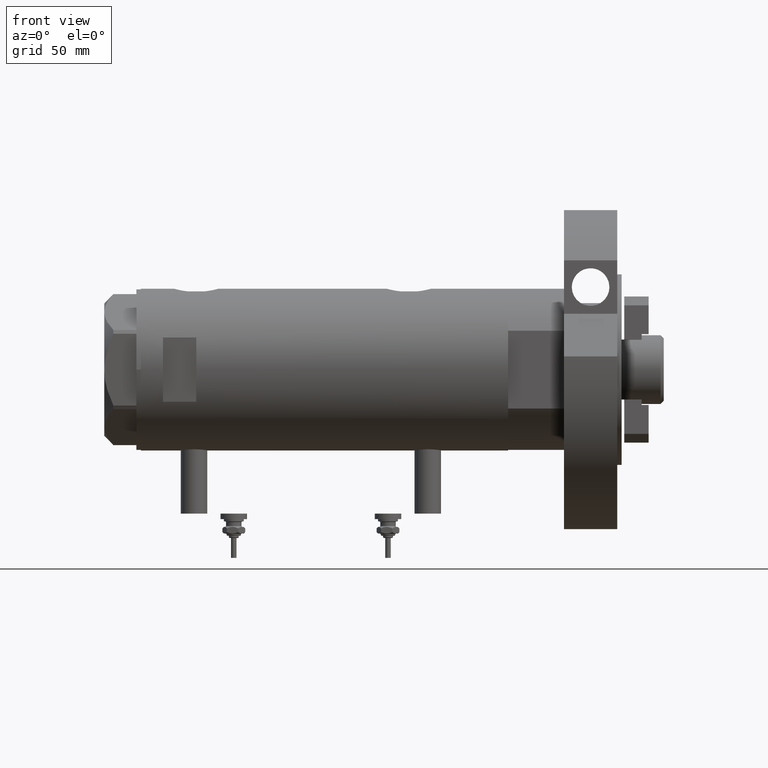
[diagram: clean part render]
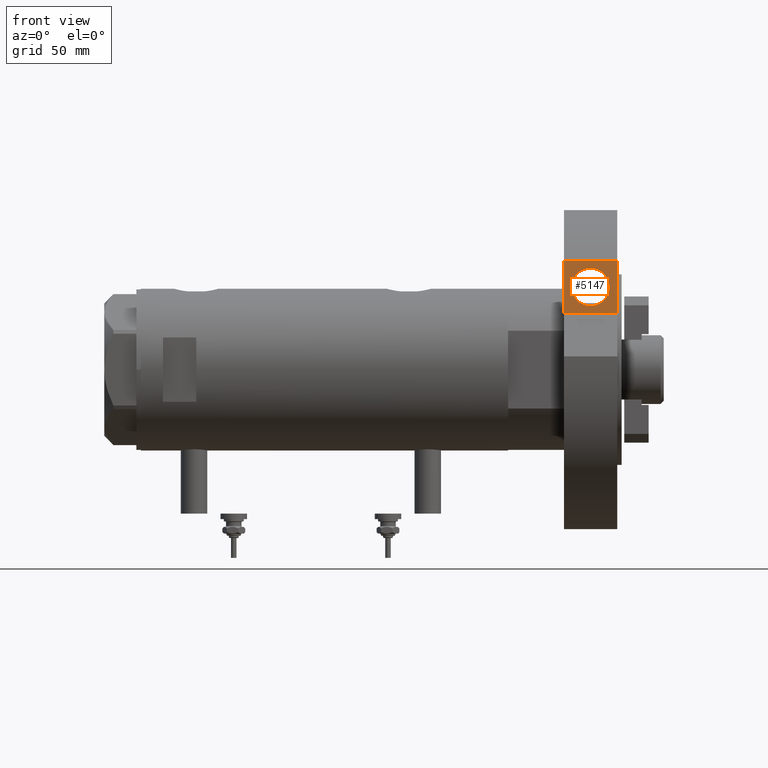
[diagram: same view with one face highlighted and labeled with its STEP entity id]
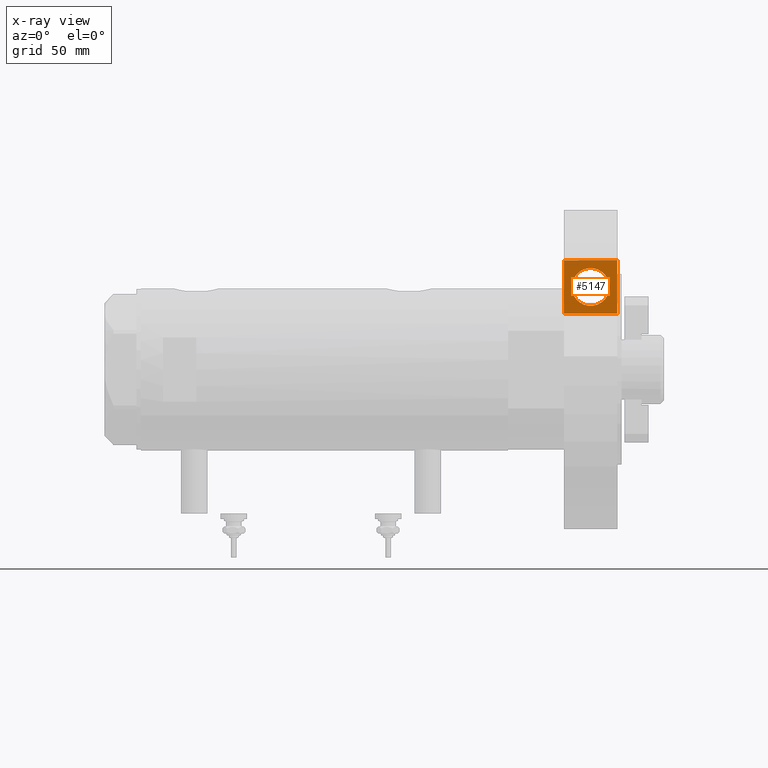
[diagram: x-ray of the same camera — body ghosted, the highlighted face saturated]
A machine part, front view. The second image highlights one B-rep face of the part: STEP entity #5147.
The next image is the same camera in x-ray: the body ghosted, the highlighted face saturated — about 0% of this face is hidden behind the body in this view.
In plain terms, the highlighted planar face has unit normal (-0, 1, 0).
Its self-contained STEP definition (entity closure, byte-faithful):
#490 = VERTEX_POINT ( 'NONE', #567 ) ;
#497 = LINE ( 'NONE', #8034, #2707 ) ;
#567 = CARTESIAN_POINT ( 'NONE',  ( 37.25305468567555067, 52.48511851279233298, 3.500000000000003109 ) ) ;
#799 = VERTEX_POINT ( 'NONE', #7420 ) ;
#819 = DIRECTION ( 'NONE',  ( -0.000000000000000000, -0.000000000000000000, 1.000000000000000000 ) ) ;
#902 = VERTEX_POINT ( 'NONE', #7467 ) ;
#921 = ORIENTED_EDGE ( 'NONE', *, *, #3056, .T. ) ;
#948 = LINE ( 'NONE', #1492, #6367 ) ;
#981 = ORIENTED_EDGE ( 'NONE', *, *, #5060, .F. ) ;
#1026 = VECTOR ( 'NONE', #5594, 1000.000000000000000 ) ;
#1042 = CARTESIAN_POINT ( 'NONE',  ( 25.21805468567554698, 52.48511851279232587, 0.000000000000000000 ) ) ;
#1301 = LINE ( 'NONE', #4604, #6370 ) ;
#1382 = AXIS2_PLACEMENT_3D ( 'NONE', #1952, #2080, #4479 ) ;
#1492 = CARTESIAN_POINT ( 'NONE',  ( 49.28805468567554726, 52.48511851279232587, 0.000000000000000000 ) ) ;
#1528 = VERTEX_POINT ( 'NONE', #2760 ) ;
#1717 = EDGE_CURVE ( 'NONE', #1528, #799, #497, .T. ) ;
#1748 = DIRECTION ( 'NONE',  ( 1.000000000000000000, 0.000000000000000000, -0.000000000000000000 ) ) ;
#1764 = CARTESIAN_POINT ( 'NONE',  ( 25.21805468567554698, 52.48511851279232587, 0.000000000000000000 ) ) ;
#1952 = CARTESIAN_POINT ( 'NONE',  ( 37.25305468567555067, 52.48511851279233298, 12.00000000000000000 ) ) ;
#2037 = DIRECTION ( 'NONE',  ( 1.000000000000000000, 0.000000000000000000, 0.000000000000000000 ) ) ;
#2080 = DIRECTION ( 'NONE',  ( 0.000000000000000000, -1.000000000000000000, 0.000000000000000000 ) ) ;
#2211 = VERTEX_POINT ( 'NONE', #7840 ) ;
#2324 = DIRECTION ( 'NONE',  ( 0.000000000000000000, -1.000000000000000000, 0.000000000000000000 ) ) ;
#2707 = VECTOR ( 'NONE', #1748, 1000.000000000000000 ) ;
#2741 = ORIENTED_EDGE ( 'NONE', *, *, #4334, .F. ) ;
#2760 = CARTESIAN_POINT ( 'NONE',  ( 25.21805468567554698, 52.48511851279232587, 24.00000000000000000 ) ) ;
#2847 = PLANE ( 'NONE',  #5578 ) ;
#2932 = DIRECTION ( 'NONE',  ( 0.000000000000000000, -1.000000000000000000, 0.000000000000000000 ) ) ;
#2971 = FACE_OUTER_BOUND ( 'NONE', #5171, .T. ) ;
#3056 = EDGE_CURVE ( 'NONE', #902, #490, #3127, .T. ) ;
#3127 = CIRCLE ( 'NONE', #1382, 8.499999999999996447 ) ;
#3634 = ORIENTED_EDGE ( 'NONE', *, *, #1717, .T. ) ;
#4334 = EDGE_CURVE ( 'NONE', #2211, #799, #948, .T. ) ;
#4479 = DIRECTION ( 'NONE',  ( 0.000000000000000000, 0.000000000000000000, -1.000000000000000000 ) ) ;
#4537 = EDGE_CURVE ( 'NONE', #490, #902, #7593, .T. ) ;
#4604 = CARTESIAN_POINT ( 'NONE',  ( 25.21805468567554698, 52.48511851279232587, 0.000000000000000000 ) ) ;
#4648 = CARTESIAN_POINT ( 'NONE',  ( 25.21805468567554698, 52.48511851279233298, 0.000000000000000000 ) ) ;
#4862 = ORIENTED_EDGE ( 'NONE', *, *, #4537, .T. ) ;
#4956 = VERTEX_POINT ( 'NONE', #4648 ) ;
#5060 = EDGE_CURVE ( 'NONE', #4956, #2211, #1301, .T. ) ;
#5147 = ADVANCED_FACE ( 'NONE', ( #5418, #2971 ), #2847, .F. ) ;
#5171 = EDGE_LOOP ( 'NONE', ( #3634, #2741, #981, #6098 ) ) ;
#5418 = FACE_BOUND ( 'NONE', #7893, .T. ) ;
#5499 = DIRECTION ( 'NONE',  ( 0.000000000000000000, -0.000000000000000000, -1.000000000000000000 ) ) ;
#5550 = LINE ( 'NONE', #1764, #1026 ) ;
#5578 = AXIS2_PLACEMENT_3D ( 'NONE', #1042, #2932, #5499 ) ;
#5594 = DIRECTION ( 'NONE',  ( -0.000000000000000000, -0.000000000000000000, 1.000000000000000000 ) ) ;
#6098 = ORIENTED_EDGE ( 'NONE', *, *, #6385, .T. ) ;
#6367 = VECTOR ( 'NONE', #819, 1000.000000000000000 ) ;
#6370 = VECTOR ( 'NONE', #2037, 1000.000000000000000 ) ;
#6385 = EDGE_CURVE ( 'NONE', #4956, #1528, #5550, .T. ) ;
#7420 = CARTESIAN_POINT ( 'NONE',  ( 49.28805468567554726, 52.48511851279232587, 24.00000000000000000 ) ) ;
#7467 = CARTESIAN_POINT ( 'NONE',  ( 37.25305468567555067, 52.48511851279233298, 20.49999999999999645 ) ) ;
#7473 = DIRECTION ( 'NONE',  ( 0.000000000000000000, 0.000000000000000000, -1.000000000000000000 ) ) ;
#7593 = CIRCLE ( 'NONE', #8129, 8.499999999999996447 ) ;
#7840 = CARTESIAN_POINT ( 'NONE',  ( 49.28805468567554726, 52.48511851279232587, 0.000000000000000000 ) ) ;
#7893 = EDGE_LOOP ( 'NONE', ( #921, #4862 ) ) ;
#8034 = CARTESIAN_POINT ( 'NONE',  ( 0.000000000000000000, 52.48511851279232587, 24.00000000000000000 ) ) ;
#8104 = CARTESIAN_POINT ( 'NONE',  ( 37.25305468567555067, 52.48511851279233298, 12.00000000000000000 ) ) ;
#8129 = AXIS2_PLACEMENT_3D ( 'NONE', #8104, #2324, #7473 ) ;